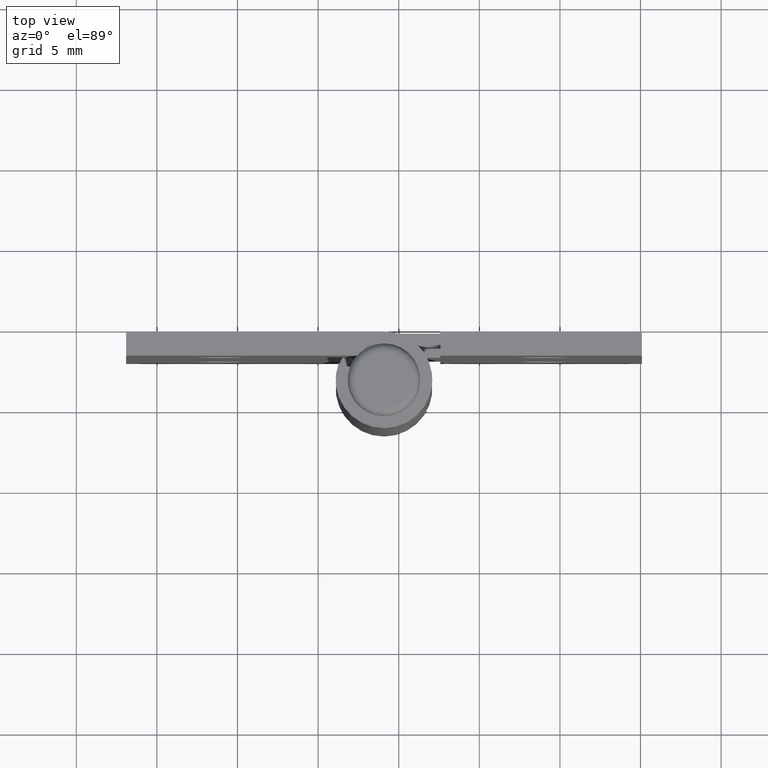
[diagram: clean part render]
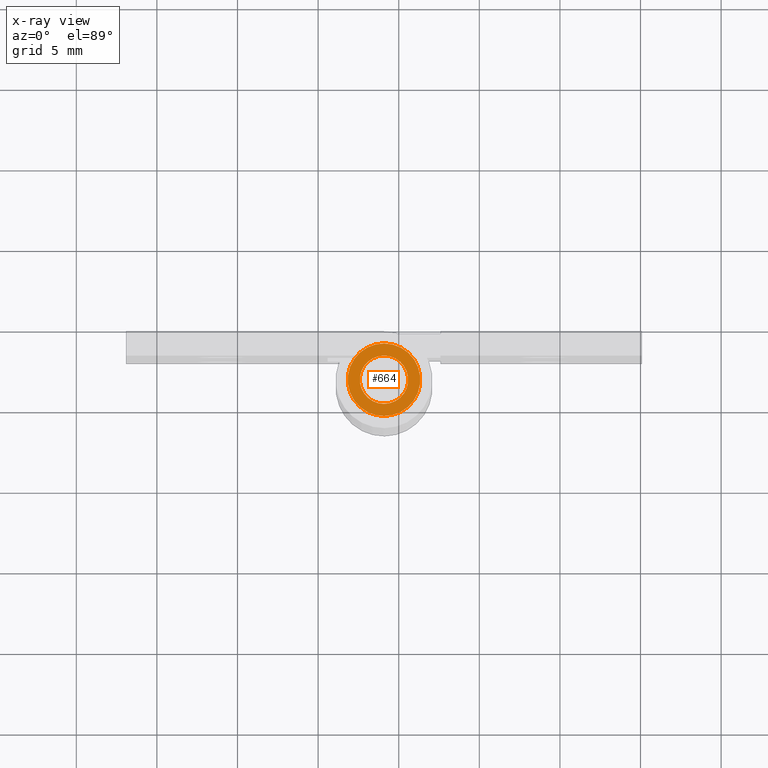
[diagram: x-ray — body ghosted, one internal face saturated and labeled with its STEP entity id]
A machine part, top view, then the same camera in x-ray: the body is ghosted and one INTERNAL B-rep face — a face not visible from any outside direction — is saturated and labeled: STEP entity #664.
In plain terms, the highlighted planar face has unit normal (0, 0, -1).
Its self-contained STEP definition (entity closure, byte-faithful):
#162=PLANE('',#736);
#181=FACE_BOUND('',#278,.T.);
#220=FACE_OUTER_BOUND('',#277,.T.);
#277=EDGE_LOOP('',(#611));
#278=EDGE_LOOP('',(#612));
#301=CIRCLE('',#724,2.25);
#305=CIRCLE('',#733,1.5);
#361=VERTEX_POINT('',#1102);
#365=VERTEX_POINT('',#1115);
#443=EDGE_CURVE('',#361,#361,#301,.T.);
#447=EDGE_CURVE('',#365,#365,#305,.T.);
#611=ORIENTED_EDGE('',*,*,#443,.F.);
#612=ORIENTED_EDGE('',*,*,#447,.T.);
#664=ADVANCED_FACE('',(#220,#181),#162,.T.);
#724=AXIS2_PLACEMENT_3D('',#1103,#906,#907);
#733=AXIS2_PLACEMENT_3D('',#1116,#924,#925);
#736=AXIS2_PLACEMENT_3D('',#1120,#930,#931);
#906=DIRECTION('center_axis',(0.,0.,-1.));
#907=DIRECTION('ref_axis',(0.,1.,0.));
#924=DIRECTION('center_axis',(0.,0.,-1.));
#925=DIRECTION('ref_axis',(0.,1.,0.));
#930=DIRECTION('center_axis',(0.,0.,1.));
#931=DIRECTION('ref_axis',(1.,0.,0.));
#1102=CARTESIAN_POINT('',(0.,5.25,-15.));
#1103=CARTESIAN_POINT('Origin',(0.,3.,-15.));
#1115=CARTESIAN_POINT('',(0.,4.5,-15.));
#1116=CARTESIAN_POINT('Origin',(0.,3.,-15.));
#1120=CARTESIAN_POINT('Origin',(0.,4.125,-15.));